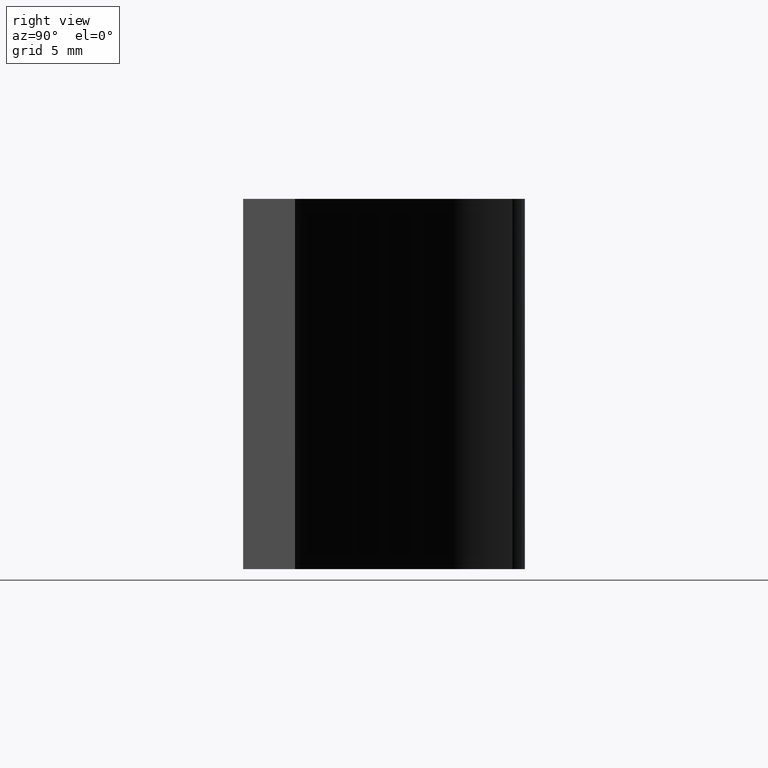
[diagram: clean part render]
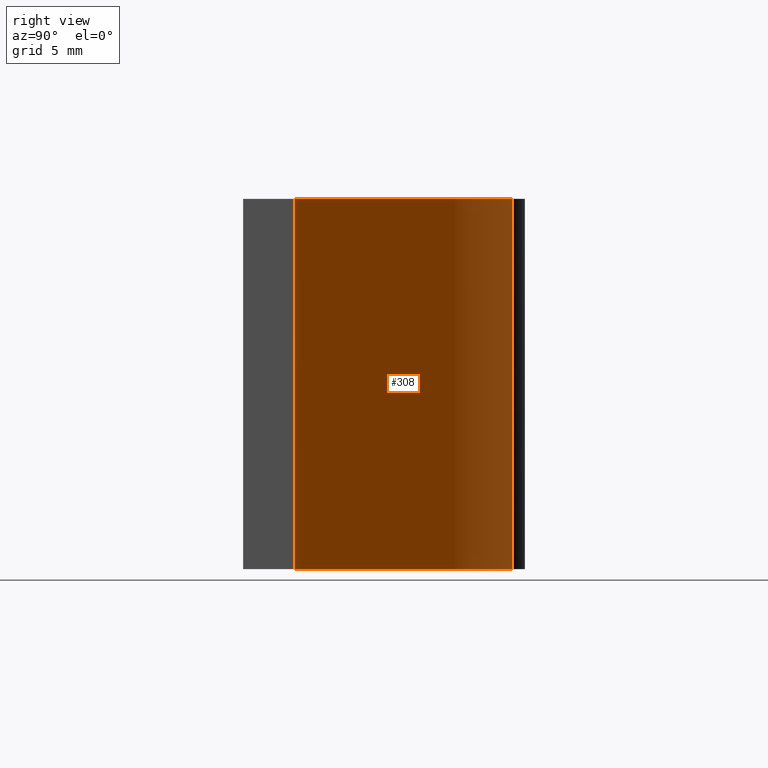
[diagram: same view with one face highlighted and labeled with its STEP entity id]
A machine part, right view. The second image highlights one B-rep face of the part: STEP entity #308.
In plain terms, the highlighted cylindrical surface (partial cylindrical patch) has radius 33.2 mm, axis along (0, 0, 1).
Its self-contained STEP definition (entity closure, byte-faithful):
#16=CYLINDRICAL_SURFACE('',#352,33.2);
#31=FACE_OUTER_BOUND('',#47,.T.);
#47=EDGE_LOOP('',(#257,#258,#259,#260));
#53=CIRCLE('',#338,33.2);
#56=CIRCLE('',#353,33.2);
#88=LINE('',#514,#124);
#89=LINE('',#518,#125);
#124=VECTOR('',#424,10.);
#125=VECTOR('',#429,10.);
#130=VERTEX_POINT('',#442);
#142=VERTEX_POINT('',#466);
#154=VERTEX_POINT('',#512);
#155=VERTEX_POINT('',#516);
#170=EDGE_CURVE('',#130,#142,#53,.T.);
#193=EDGE_CURVE('',#154,#142,#88,.T.);
#194=EDGE_CURVE('',#154,#155,#56,.T.);
#195=EDGE_CURVE('',#155,#130,#89,.T.);
#257=ORIENTED_EDGE('',*,*,#194,.T.);
#258=ORIENTED_EDGE('',*,*,#195,.T.);
#259=ORIENTED_EDGE('',*,*,#170,.T.);
#260=ORIENTED_EDGE('',*,*,#193,.F.);
#308=ADVANCED_FACE('',(#31),#16,.F.);
#338=AXIS2_PLACEMENT_3D('',#468,#376,#377);
#352=AXIS2_PLACEMENT_3D('',#515,#425,#426);
#353=AXIS2_PLACEMENT_3D('',#517,#427,#428);
#376=DIRECTION('center_axis',(0.,0.,-1.));
#377=DIRECTION('ref_axis',(-0.877780937248784,-0.479062236251874,0.));
#424=DIRECTION('',(0.,0.,-1.));
#425=DIRECTION('center_axis',(0.,0.,1.));
#426=DIRECTION('ref_axis',(-0.877780937248784,-0.479062236251874,0.));
#427=DIRECTION('center_axis',(0.,0.,1.));
#428=DIRECTION('ref_axis',(-0.877780937248784,-0.479062236251874,0.));
#429=DIRECTION('',(0.,0.,-1.));
#442=CARTESIAN_POINT('',(19.05,2.5,-12.5));
#466=CARTESIAN_POINT('',(2.81075711652133,17.1851716327046,-12.5));
#468=CARTESIAN_POINT('Origin',(31.953084233181,33.0900378762668,-12.5));
#512=CARTESIAN_POINT('',(2.81075711652133,17.1851716327046,12.5));
#514=CARTESIAN_POINT('',(2.81075711652133,17.1851716327046,0.));
#515=CARTESIAN_POINT('Origin',(31.953084233181,33.0900378762668,0.));
#516=CARTESIAN_POINT('',(19.05,2.5,12.5));
#517=CARTESIAN_POINT('Origin',(31.953084233181,33.0900378762668,12.5));
#518=CARTESIAN_POINT('',(19.05,2.5,0.));